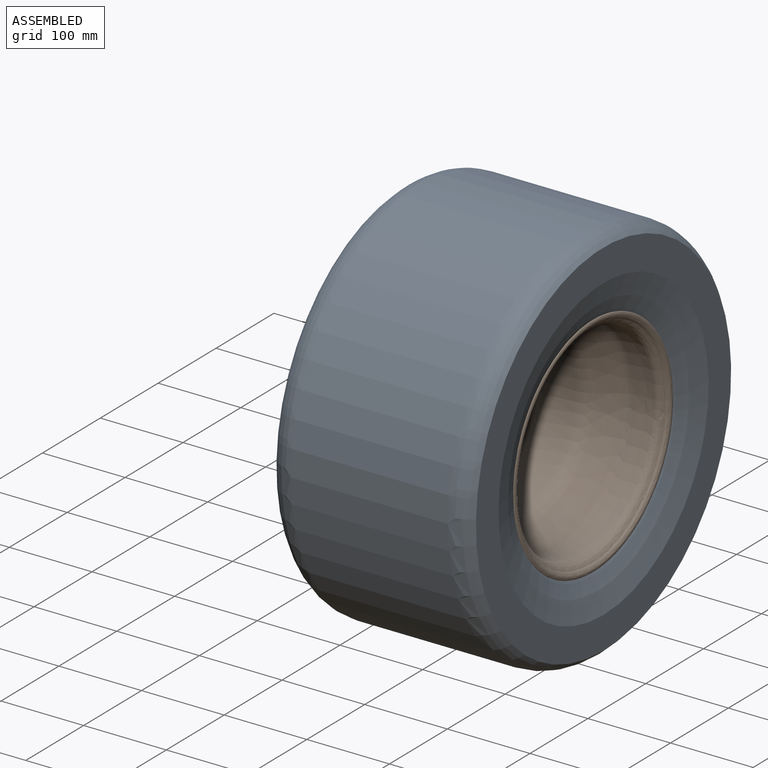
[diagram: assembled view]
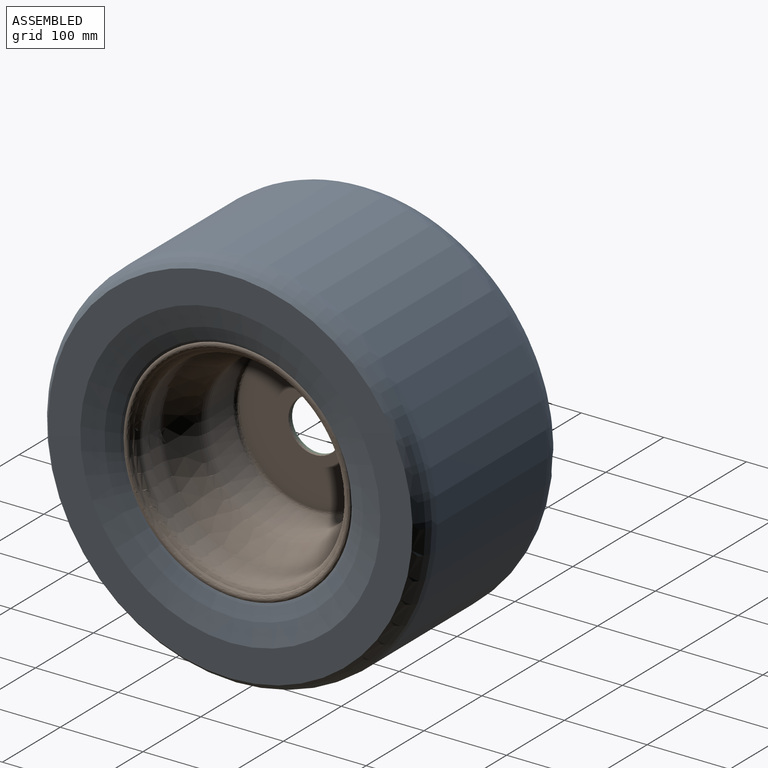
[diagram: assembled view, second angle]
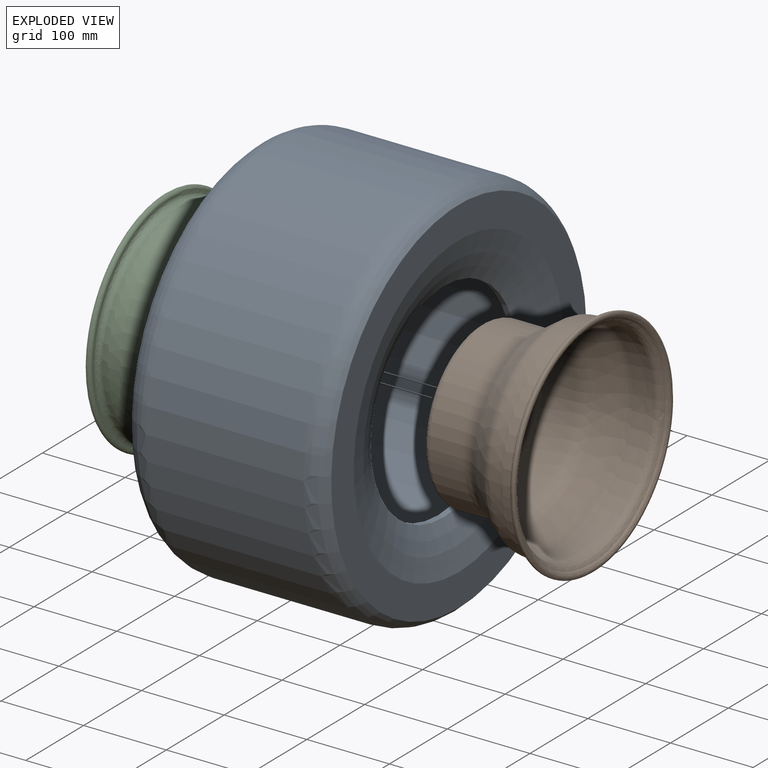
[diagram: exploded view]
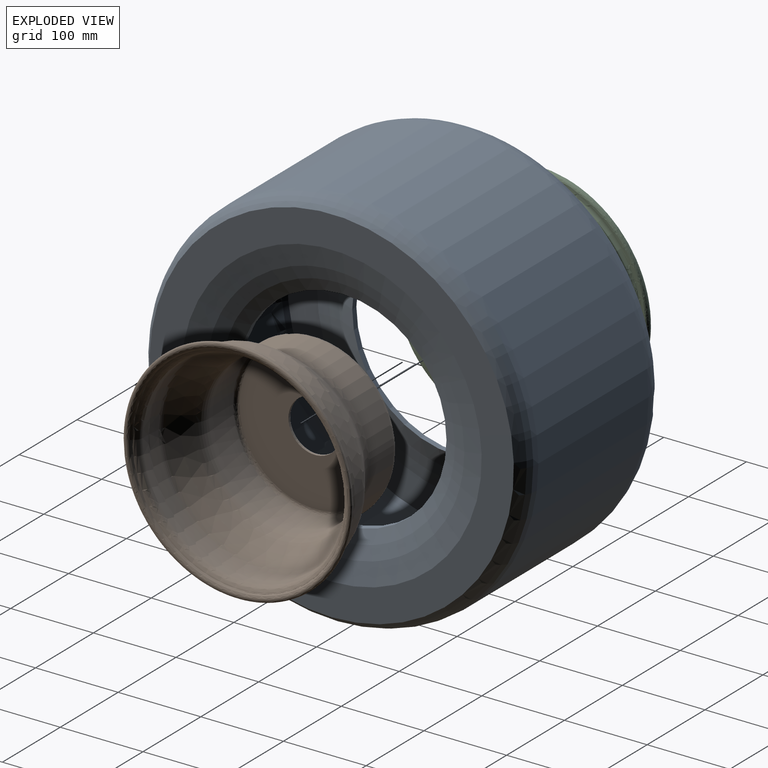
[diagram: exploded view, second angle]
ASSEMBLY  parts=3 mates=2
PART A: 16 faces, bbox 256.6x503.1x503.1 mm
  f0: cylinder r=126.29mm len=252.58mm, axis (1,0,0), area 5678.7mm2, adj f1,f9
  f1: torus R=212.67mm, axis (1,0,0), area 56372.2mm2, adj f0,f4
  f2: cylinder r=126.29mm len=252.58mm, axis (1,0,0), area 5678.7mm2, adj f3,f10
  f3: torus R=212.67mm, axis (1,0,0), area 56372.2mm2, adj f2,f6
  f4: plane 441.01x441.01mm, normal (-1,0,0), area 49133.6mm2, adj f1,f5
  f5: torus R=199.36mm, axis (1,0,0), area 41564.1mm2, adj f4,f8
  f6: plane 441.01x441.01mm, normal (1,0,0), area 49133.6mm2, adj f3,f7
  f7: torus R=199.36mm, axis (1,0,0), area 41564.1mm2, adj f6,f8
  f8: cylinder r=232.41mm len=464.82mm, axis (-1,0,0), area 278182.4mm2, adj f5,f7
  f9: torus R=212.67mm, axis (1,0,0), area 57205.8mm2, adj f0,f11
  f10: torus R=212.67mm, axis (1,0,0), area 57205.8mm2, adj f2,f13
  f11: plane 436.13x436.13mm, normal (1,0,0), area 45174.8mm2, adj f9,f12
  f12: torus R=199.36mm, axis (1,0,0), area 29767.4mm2, adj f11,f15
  f13: plane 436.13x436.13mm, normal (-1,0,0), area 45174.8mm2, adj f10,f14
  f14: torus R=199.36mm, axis (1,0,0), area 29767.4mm2, adj f13,f15
  f15: cylinder r=226.06mm len=452.12mm, axis (-1,0,0), area 270581.8mm2, adj f12,f14
PART B: 41 faces, bbox 276.3x276.3x137.6 mm
  f0: plane 181.83x181.83mm, normal (0,0,-1), area 22753.4mm2, adj f1,f2,f40
  f1: revolved ~197.65x98.83mm, area 3752.8mm2, adj f0,f2,f3
  f2: revolved ~197.65x98.83mm, area 3752.8mm2, adj f0,f1,f3
  f3: cylinder r=98.83mm len=197.65mm, axis (0,0,1), area 25668.8mm2, adj f1,f2,f4,f5
  f4: revolved ~206.91x103.46mm, area 4918.9mm2, adj f3,f5,f6
  f5: revolved ~206.91x103.46mm, area 4918.9mm2, adj f3,f4,f6
  f6: cone r=0mm half-angle=35.1deg, axis (0,0,1), area 22323mm2, adj f4,f5,f7,f8
  f7: revolved ~250.03x125.01mm, area 3900.6mm2, adj f6,f8,f9
  f8: revolved ~250.03x125.01mm, area 3900.6mm2, adj f6,f7,f9
  f9: cone r=0mm half-angle=5deg, axis (0,0,1), area 10822.8mm2, adj f7,f8,f10,f11
  f10: revolved ~252.61x126.3mm, area 879.3mm2, adj f9,f11,f12
  f11: revolved ~252.61x126.3mm, area 879.3mm2, adj f9,f10,f12
  f12: cylinder r=126.3mm len=252.61mm, axis (0,0,1), area 7584.1mm2, adj f10,f11,f13,f14
  f13: revolved ~266.53x133.27mm, area 4288.7mm2, adj f12,f14,f15
  f14: revolved ~266.53x133.27mm, area 4288.7mm2, adj f12,f13,f16
  f15: revolved ~276.28x138.14mm, area 3230mm2, adj f13,f16,f17
  f16: revolved ~276.28x138.14mm, area 3230mm2, adj f14,f15,f18
  f17: revolved ~276.28x138.14mm, area 1027.1mm2, adj f15,f18,f19
  f18: revolved ~276.28x138.14mm, area 1027.1mm2, adj f16,f17,f20
  f19: revolved ~273.71x136.85mm, area 2653.7mm2, adj f17,f20,f21
  f20: revolved ~273.71x136.85mm, area 2653.7mm2, adj f18,f19,f22
  f21: revolved ~262.1x131.05mm, area 916.8mm2, adj f19,f22,f23
  f22: revolved ~262.1x131.05mm, area 916.8mm2, adj f20,f21,f24
  f23: revolved ~259.44x129.72mm, area 575mm2, adj f21,f24,f25
  f24: revolved ~259.44x129.72mm, area 575mm2, adj f22,f23,f26
  f25: revolved ~257.38x128.69mm, area 4272.1mm2, adj f23,f26,f27
  f26: revolved ~257.38x128.69mm, area 4272.1mm2, adj f24,f25,f27
  f27: cylinder r=123.14mm len=246.27mm, axis (0,0,1), area 7394mm2, adj f25,f26,f28,f29
  f28: revolved ~246.27x123.14mm, area 750.1mm2, adj f27,f29,f31
  f29: revolved ~246.27x123.14mm, area 750.1mm2, adj f27,f28,f31
  f30: revolved ~243.72x121.86mm, area 3173.3mm2, adj f31,f32,f34
  f31: cone r=0mm half-angle=5deg, axis (0,0,1), area 10551.1mm2, adj f28,f29,f30,f32
  f32: revolved ~243.72x121.86mm, area 3173.3mm2, adj f30,f31,f34
  f33: revolved ~201.74x100.87mm, area 5370.1mm2, adj f34,f35,f38
  f34: cone r=0mm half-angle=35.1deg, axis (0,0,1), area 21809.9mm2, adj f30,f32,f33,f35
  f35: revolved ~201.74x100.87mm, area 5370.1mm2, adj f33,f34,f38
  f36: plane 181.83x181.83mm, normal (0,0,1), area 22753.4mm2, adj f37,f39,f40
  f37: revolved ~191.32x95.66mm, area 2204.4mm2, adj f36,f38,f39
  f38: cylinder r=95.66mm len=191.32mm, axis (0,0,1), area 24846.7mm2, adj f33,f35,f37,f39
  f39: revolved ~191.32x95.66mm, area 2204.4mm2, adj f36,f37,f38
  f40: cylinder r=31.75mm len=63.5mm, axis (0,0,1), area 633.4mm2, adj f0,f36
PART C: 48 faces, bbox 276.9x276.9x81.2 mm
  f0: plane 183.6x183.6mm, normal (0,0,-1), area 23261.3mm2, adj f1,f2,f47
  f1: revolved ~199.65x99.83mm, area 2496.6mm2, adj f0,f2,f3
  f2: revolved ~199.65x99.83mm, area 2496.6mm2, adj f0,f1,f3
  f3: cone r=0mm half-angle=64.9deg, axis (0,0,1), area 16145.5mm2, adj f1,f2,f4,f5
  f4: revolved ~249.12x124.56mm, area 2657.5mm2, adj f3,f5,f6
  f5: revolved ~249.12x124.56mm, area 2657.5mm2, adj f3,f4,f6
  f6: cone r=0mm half-angle=3deg, axis (0,0,1), area 6613mm2, adj f4,f5,f7,f8
  f7: revolved ~250.07x125.04mm, area 522.4mm2, adj f6,f8,f9
  f8: revolved ~250.07x125.04mm, area 522.4mm2, adj f6,f7,f9
  f9: cylinder r=125.04mm len=250.07mm, axis (0,0,1), area 14845.4mm2, adj f7,f8,f10,f11
  f10: revolved ~250.27x125.13mm, area 870.9mm2, adj f9,f11,f12
  f11: revolved ~250.27x125.13mm, area 870.9mm2, adj f9,f10,f12
  f12: cone r=0mm half-angle=5deg, axis (0,0,1), area 9754.3mm2, adj f10,f11,f13,f14
  f13: revolved ~252.61x126.3mm, area 879.3mm2, adj f12,f14,f15
  f14: revolved ~252.61x126.3mm, area 879.3mm2, adj f12,f13,f15
  f15: cylinder r=126.3mm len=252.61mm, axis (0,0,1), area 4306.3mm2, adj f13,f14,f16,f17
  f16: revolved ~267.04x133.52mm, area 4395.6mm2, adj f15,f17,f18
  f17: revolved ~267.04x133.52mm, area 4395.6mm2, adj f15,f16,f19
  f18: revolved ~276.86x138.43mm, area 3166.2mm2, adj f16,f19,f20
  f19: revolved ~276.86x138.43mm, area 3166.2mm2, adj f17,f18,f21
  f20: revolved ~276.86x138.43mm, area 809.7mm2, adj f18,f21,f22
  f21: revolved ~276.86x138.43mm, area 809.7mm2, adj f19,f20,f23
  f22: revolved ~275.26x137.63mm, area 4081.1mm2, adj f20,f23,f24
  f23: revolved ~275.26x137.63mm, area 4081.1mm2, adj f21,f22,f25
  f24: revolved ~258.97x129.49mm, area 71.7mm2, adj f22,f25,f26
  f25: revolved ~258.97x129.49mm, area 71.7mm2, adj f23,f24,f27
  f26: revolved ~258.85x129.43mm, area 724.5mm2, adj f24,f27,f28
  f27: revolved ~258.85x129.43mm, area 724.5mm2, adj f25,f26,f29
  f28: revolved ~256.6x128.3mm, area 4095.9mm2, adj f26,f29,f30
  f29: revolved ~256.6x128.3mm, area 4095.9mm2, adj f27,f28,f30
  f30: cylinder r=123.14mm len=246.27mm, axis (0,0,1), area 4198.4mm2, adj f28,f29,f31,f32
  f31: revolved ~246.27x123.14mm, area 750.1mm2, adj f30,f32,f33
  f32: revolved ~246.27x123.14mm, area 750.1mm2, adj f30,f31,f33
  f33: cone r=0mm half-angle=5deg, axis (0,0,1), area 9509.5mm2, adj f31,f32,f34,f35
  f34: revolved ~243.96x121.98mm, area 955mm2, adj f33,f35,f36
  f35: revolved ~243.96x121.98mm, area 955mm2, adj f33,f34,f36
  f36: cylinder r=121.87mm len=243.74mm, axis (0,0,1), area 14469.6mm2, adj f34,f35,f37,f38
  f37: revolved ~243.74x121.87mm, area 445.5mm2, adj f36,f38,f40
  f38: revolved ~243.74x121.87mm, area 445.5mm2, adj f36,f37,f40
  f39: revolved ~242.8x121.4mm, area 1301.8mm2, adj f40,f41,f42
  f40: cone r=0mm half-angle=3deg, axis (0,0,1), area 6445.5mm2, adj f37,f38,f39,f42
  f41: cone r=0mm half-angle=64.9deg, axis (0,0,1), area 7974.9mm2, adj f39,f44,f45
  f42: revolved ~242.8x121.4mm, area 1301.8mm2, adj f39,f40,f45
  f43: plane 183.6x183.6mm, normal (0,0,1), area 23261.3mm2, adj f44,f46,f47
  f44: revolved ~196.98x98.49mm, area 2065.7mm2, adj f41,f43,f46
  f45: cone r=0mm half-angle=64.9deg, axis (0,0,1), area 7974.9mm2, adj f41,f42,f46
  f46: revolved ~196.98x98.49mm, area 2065.7mm2, adj f43,f44,f45
  f47: cylinder r=31.75mm len=63.5mm, axis (0,0,1), area 633.4mm2, adj f0,f43
PLACE A t=(28.32,0,-0.01)mm
PLACE B rot(axis=(0.58,0.58,0.58),120deg) t=(0,0,0)mm
PLACE C rot(axis=(0,-1,0),90deg) t=(0,0,0)mm
MATE fastened B.f3 <-> C.f47  axis (-1,0,0) through (0,0,0)mm
MATE fastened A.f0 <-> B.f3  axis (1,0,0) through (130.81,0,-0.01)mm
